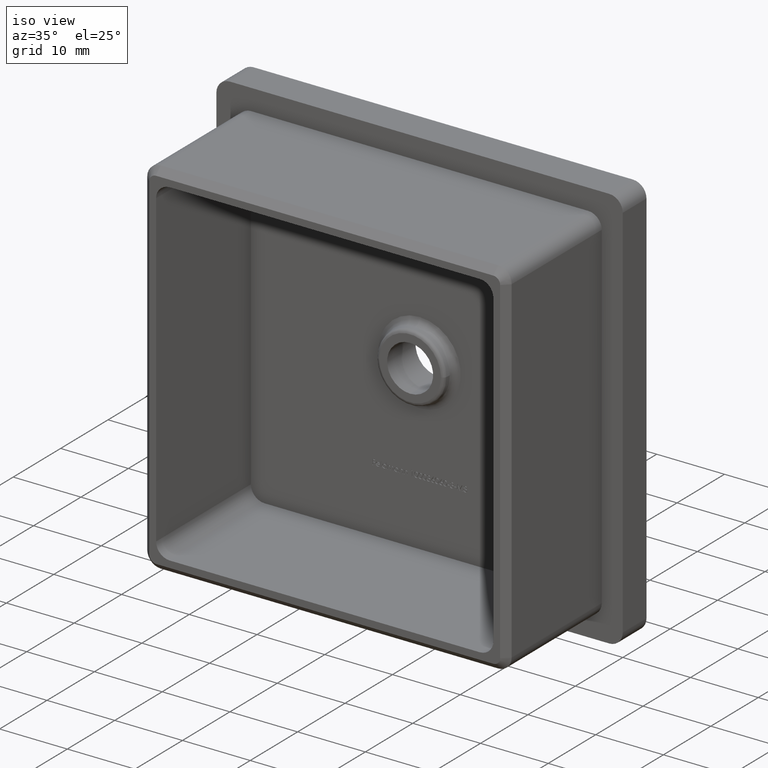
[diagram: clean part render]
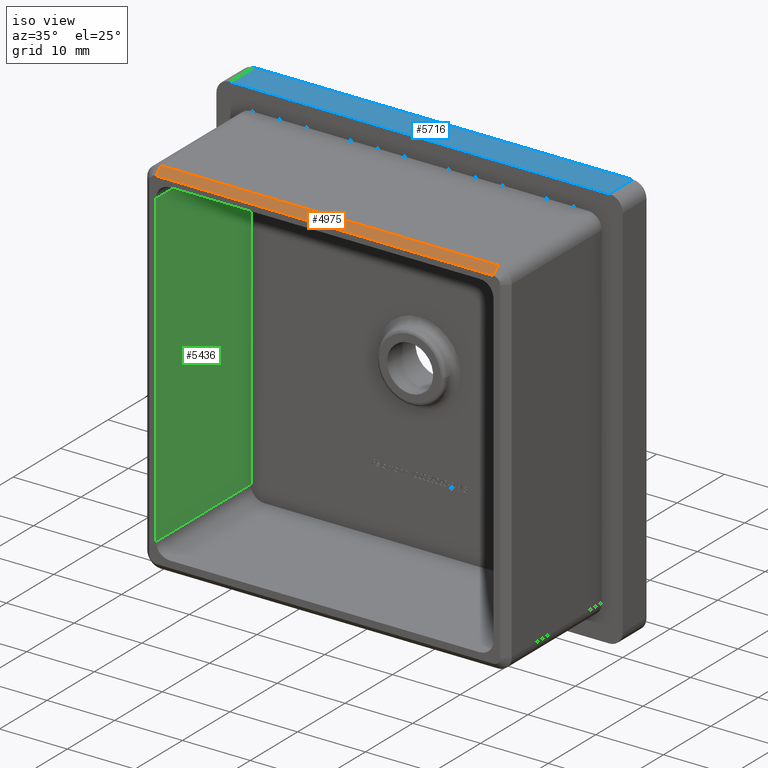
[diagram: same view with three faces highlighted in distinct colors, each labeled with its STEP entity id]
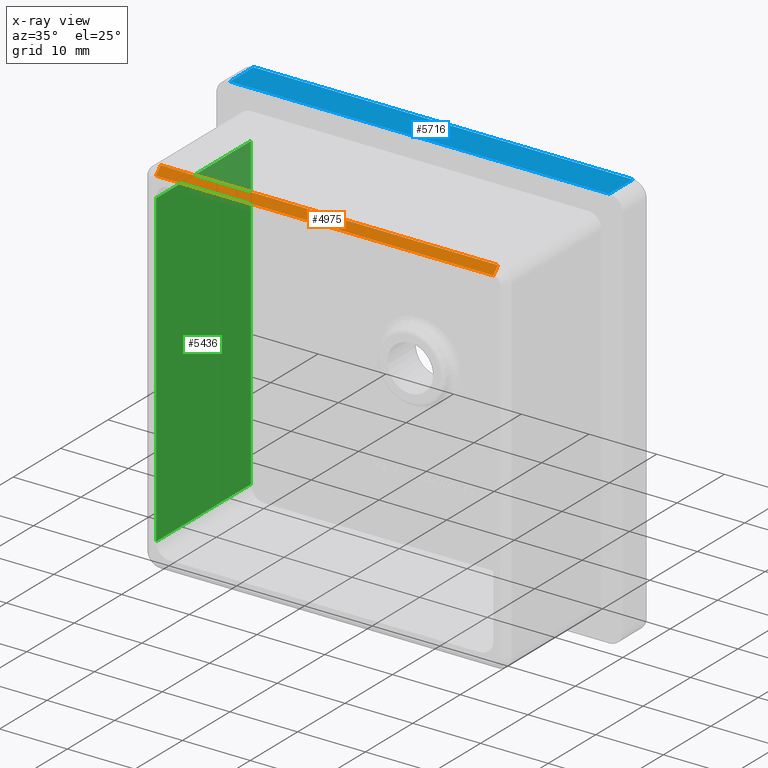
[diagram: x-ray of the same camera — body ghosted, the three highlighted faces saturated]
A machine part, iso view with three faces highlighted in distinct colors.
The next image is the same camera in x-ray (body ghosted, the three faces saturated) — at least one of them is partly hidden behind the body in this view.
Their STEP definitions:

[orange] entity #4975 — the highlighted planar face has unit normal (0, -0.7071, 0.7071).
#216 = VERTEX_POINT ( 'NONE', #6886 ) ;
#405 = CARTESIAN_POINT ( 'NONE',  ( 24.89999999999999900, -20.00000000000000000, 25.89999999999999900 ) ) ;
#742 = DIRECTION ( 'NONE',  ( 0.0000000000000000000, -0.7071067811865475700, 0.7071067811865475700 ) ) ;
#1218 = LINE ( 'NONE', #1500, #2137 ) ;
#1372 = VERTEX_POINT ( 'NONE', #6496 ) ;
#1445 = AXIS2_PLACEMENT_3D ( 'NONE', #16849, #742, #9418 ) ;
#1500 = CARTESIAN_POINT ( 'NONE',  ( 24.89999999999999900, -19.00000000000000000, 26.89999999999999900 ) ) ;
#2137 = VECTOR ( 'NONE', #4362, 1000.000000000000100 ) ;
#3088 = DIRECTION ( 'NONE',  ( -1.000000000000000000, 0.0000000000000000000, 0.0000000000000000000 ) ) ;
#3146 = EDGE_CURVE ( 'NONE', #19200, #216, #10862, .T. ) ;
#4064 = DIRECTION ( 'NONE',  ( 1.000000000000000000, 0.0000000000000000000, 0.0000000000000000000 ) ) ;
#4107 = VECTOR ( 'NONE', #4398, 1000.000000000000100 ) ;
#4362 = DIRECTION ( 'NONE',  ( 0.0000000000000000000, -0.7071067811865474600, -0.7071067811865474600 ) ) ;
#4398 = DIRECTION ( 'NONE',  ( 0.0000000000000000000, -0.7071067811865474600, -0.7071067811865474600 ) ) ;
#4478 = ORIENTED_EDGE ( 'NONE', *, *, #14026, .F. ) ;
#4559 = LINE ( 'NONE', #7492, #4107 ) ;
#4863 = EDGE_CURVE ( 'NONE', #1372, #216, #4559, .T. ) ;
#4975 = ADVANCED_FACE ( 'NONE', ( #14515 ), #15297, .T. ) ;
#6496 = CARTESIAN_POINT ( 'NONE',  ( -24.89999999999999900, -19.00000000000000000, 26.89999999999999900 ) ) ;
#6886 = CARTESIAN_POINT ( 'NONE',  ( -24.89999999999999900, -20.00000000000000000, 25.89999999999999900 ) ) ;
#7297 = ORIENTED_EDGE ( 'NONE', *, *, #16875, .F. ) ;
#7492 = CARTESIAN_POINT ( 'NONE',  ( -24.89999999999999900, -19.00000000000000000, 26.89999999999999900 ) ) ;
#7758 = VERTEX_POINT ( 'NONE', #9914 ) ;
#7917 = ORIENTED_EDGE ( 'NONE', *, *, #3146, .F. ) ;
#8359 = ORIENTED_EDGE ( 'NONE', *, *, #4863, .T. ) ;
#8811 = LINE ( 'NONE', #18746, #16188 ) ;
#9418 = DIRECTION ( 'NONE',  ( 1.000000000000000000, 0.0000000000000000000, 0.0000000000000000000 ) ) ;
#9914 = CARTESIAN_POINT ( 'NONE',  ( 24.89999999999999900, -19.00000000000000000, 26.89999999999999900 ) ) ;
#10862 = LINE ( 'NONE', #17833, #11080 ) ;
#11080 = VECTOR ( 'NONE', #3088, 1000.000000000000000 ) ;
#11483 = EDGE_LOOP ( 'NONE', ( #8359, #7917, #4478, #7297 ) ) ;
#14026 = EDGE_CURVE ( 'NONE', #7758, #19200, #1218, .T. ) ;
#14515 = FACE_OUTER_BOUND ( 'NONE', #11483, .T. ) ;
#15297 = PLANE ( 'NONE',  #1445 ) ;
#16188 = VECTOR ( 'NONE', #4064, 1000.000000000000000 ) ;
#16849 = CARTESIAN_POINT ( 'NONE',  ( 0.0000000000000000000, -20.00000000000000000, 25.89999999999999900 ) ) ;
#16875 = EDGE_CURVE ( 'NONE', #1372, #7758, #8811, .T. ) ;
#17833 = CARTESIAN_POINT ( 'NONE',  ( -24.89999999999999900, -20.00000000000000000, 25.89999999999999900 ) ) ;
#18746 = CARTESIAN_POINT ( 'NONE',  ( 24.89999999999998400, -19.00000000000000000, 26.89999999999999900 ) ) ;
#19200 = VERTEX_POINT ( 'NONE', #405 ) ;

[blue] entity #5716 — the highlighted planar face has unit normal (0, 0, -1).
#671 = EDGE_LOOP ( 'NONE', ( #4694, #5067, #4146, #16641 ) ) ;
#757 = CARTESIAN_POINT ( 'NONE',  ( -27.99999999999999300, 5.000000000000000000, 30.00000000000000000 ) ) ;
#899 = EDGE_CURVE ( 'NONE', #7872, #1998, #8367, .T. ) ;
#1285 = VECTOR ( 'NONE', #17613, 1000.000000000000000 ) ;
#1692 = CARTESIAN_POINT ( 'NONE',  ( -29.99999999999999600, 0.0000000000000000000, 30.00000000000000000 ) ) ;
#1998 = VERTEX_POINT ( 'NONE', #6016 ) ;
#2758 = PLANE ( 'NONE',  #4069 ) ;
#2976 = DIRECTION ( 'NONE',  ( 1.000000000000000000, 0.0000000000000000000, 0.0000000000000000000 ) ) ;
#3096 = CARTESIAN_POINT ( 'NONE',  ( -29.99999999999999600, 5.000000000000000000, 30.00000000000000000 ) ) ;
#4069 = AXIS2_PLACEMENT_3D ( 'NONE', #15994, #16367, #10441 ) ;
#4146 = ORIENTED_EDGE ( 'NONE', *, *, #15843, .F. ) ;
#4596 = CARTESIAN_POINT ( 'NONE',  ( -27.99999999999999300, 0.0000000000000000000, 30.00000000000000000 ) ) ;
#4694 = ORIENTED_EDGE ( 'NONE', *, *, #899, .T. ) ;
#5067 = ORIENTED_EDGE ( 'NONE', *, *, #6519, .T. ) ;
#5216 = VERTEX_POINT ( 'NONE', #5316 ) ;
#5316 = CARTESIAN_POINT ( 'NONE',  ( 28.00000000000000000, 5.000000000000000000, 30.00000000000000000 ) ) ;
#5716 = ADVANCED_FACE ( 'NONE', ( #10097 ), #2758, .F. ) ;
#6016 = CARTESIAN_POINT ( 'NONE',  ( 28.00000000000000000, 0.0000000000000000000, 30.00000000000000000 ) ) ;
#6519 = EDGE_CURVE ( 'NONE', #1998, #5216, #17711, .T. ) ;
#7585 = DIRECTION ( 'NONE',  ( 1.000000000000000000, 0.0000000000000000000, 0.0000000000000000000 ) ) ;
#7872 = VERTEX_POINT ( 'NONE', #4596 ) ;
#7876 = CARTESIAN_POINT ( 'NONE',  ( -27.99999999999999300, 5.000000000000000000, 30.00000000000000000 ) ) ;
#8367 = LINE ( 'NONE', #1692, #14391 ) ;
#8571 = VECTOR ( 'NONE', #18096, 1000.000000000000000 ) ;
#10097 = FACE_OUTER_BOUND ( 'NONE', #671, .T. ) ;
#10441 = DIRECTION ( 'NONE',  ( -1.000000000000000000, 0.0000000000000000000, -0.0000000000000000000 ) ) ;
#11130 = VECTOR ( 'NONE', #2976, 1000.000000000000000 ) ;
#14369 = LINE ( 'NONE', #7876, #8571 ) ;
#14391 = VECTOR ( 'NONE', #7585, 1000.000000000000000 ) ;
#15057 = LINE ( 'NONE', #3096, #11130 ) ;
#15843 = EDGE_CURVE ( 'NONE', #18702, #5216, #15057, .T. ) ;
#15994 = CARTESIAN_POINT ( 'NONE',  ( -29.99999999999999600, 5.000000000000000000, 30.00000000000000000 ) ) ;
#16367 = DIRECTION ( 'NONE',  ( 0.0000000000000000000, 0.0000000000000000000, -1.000000000000000000 ) ) ;
#16641 = ORIENTED_EDGE ( 'NONE', *, *, #17810, .T. ) ;
#17613 = DIRECTION ( 'NONE',  ( -0.0000000000000000000, 1.000000000000000000, -0.0000000000000000000 ) ) ;
#17681 = CARTESIAN_POINT ( 'NONE',  ( 28.00000000000000000, 5.000000000000000000, 30.00000000000000000 ) ) ;
#17711 = LINE ( 'NONE', #17681, #1285 ) ;
#17810 = EDGE_CURVE ( 'NONE', #18702, #7872, #14369, .T. ) ;
#18096 = DIRECTION ( 'NONE',  ( 0.0000000000000000000, -1.000000000000000000, 0.0000000000000000000 ) ) ;
#18702 = VERTEX_POINT ( 'NONE', #757 ) ;

[green] entity #5436 — the highlighted planar face has unit normal (1, 0, 0).
#83 = ORIENTED_EDGE ( 'NONE', *, *, #3492, .T. ) ;
#1272 = CARTESIAN_POINT ( 'NONE',  ( -24.90000000000000200, 0.0000000000000000000, -22.90000000000000600 ) ) ;
#1749 = ORIENTED_EDGE ( 'NONE', *, *, #12189, .T. ) ;
#2118 = CARTESIAN_POINT ( 'NONE',  ( -24.90000000000000200, -20.00000000000000000, 24.90000000000000200 ) ) ;
#2373 = VERTEX_POINT ( 'NONE', #16130 ) ;
#2479 = VECTOR ( 'NONE', #12217, 1000.000000000000000 ) ;
#3394 = CARTESIAN_POINT ( 'NONE',  ( -24.90000000000000200, -20.00000000000000000, -22.90000000000000600 ) ) ;
#3420 = CARTESIAN_POINT ( 'NONE',  ( -24.90000000000000200, 0.0000000000000000000, 24.90000000000000200 ) ) ;
#3492 = EDGE_CURVE ( 'NONE', #9648, #12640, #13879, .T. ) ;
#3951 = VECTOR ( 'NONE', #5013, 1000.000000000000000 ) ;
#4652 = CARTESIAN_POINT ( 'NONE',  ( -24.90000000000000200, 0.0000000000000000000, 22.90000000000000200 ) ) ;
#4746 = EDGE_CURVE ( 'NONE', #9648, #2373, #18449, .T. ) ;
#5013 = DIRECTION ( 'NONE',  ( 0.0000000000000000000, -0.0000000000000000000, -1.000000000000000000 ) ) ;
#5436 = ADVANCED_FACE ( 'NONE', ( #7100 ), #10975, .T. ) ;
#5742 = DIRECTION ( 'NONE',  ( 0.0000000000000000000, 1.000000000000000000, -0.0000000000000000000 ) ) ;
#6228 = CARTESIAN_POINT ( 'NONE',  ( -24.90000000000000200, -20.00000000000000000, 24.90000000000000200 ) ) ;
#7100 = FACE_OUTER_BOUND ( 'NONE', #15840, .T. ) ;
#8066 = CARTESIAN_POINT ( 'NONE',  ( -24.90000000000000200, -20.00000000000000000, 22.90000000000000200 ) ) ;
#8123 = LINE ( 'NONE', #6228, #3951 ) ;
#8681 = ORIENTED_EDGE ( 'NONE', *, *, #17085, .T. ) ;
#9648 = VERTEX_POINT ( 'NONE', #4652 ) ;
#10975 = PLANE ( 'NONE',  #18313 ) ;
#11864 = VERTEX_POINT ( 'NONE', #3394 ) ;
#11978 = LINE ( 'NONE', #1272, #16090 ) ;
#12189 = EDGE_CURVE ( 'NONE', #11864, #2373, #11978, .T. ) ;
#12217 = DIRECTION ( 'NONE',  ( 0.0000000000000000000, -0.0000000000000000000, -1.000000000000000000 ) ) ;
#12532 = ORIENTED_EDGE ( 'NONE', *, *, #4746, .F. ) ;
#12640 = VERTEX_POINT ( 'NONE', #13468 ) ;
#13468 = CARTESIAN_POINT ( 'NONE',  ( -24.90000000000000200, -20.00000000000000000, 22.90000000000000200 ) ) ;
#13879 = LINE ( 'NONE', #8066, #17346 ) ;
#14151 = DIRECTION ( 'NONE',  ( 1.000000000000000000, 0.0000000000000000000, 0.0000000000000000000 ) ) ;
#15426 = DIRECTION ( 'NONE',  ( -0.0000000000000000000, -1.000000000000000000, 0.0000000000000000000 ) ) ;
#15497 = DIRECTION ( 'NONE',  ( 0.0000000000000000000, 0.0000000000000000000, -1.000000000000000000 ) ) ;
#15840 = EDGE_LOOP ( 'NONE', ( #12532, #83, #8681, #1749 ) ) ;
#16090 = VECTOR ( 'NONE', #5742, 1000.000000000000000 ) ;
#16130 = CARTESIAN_POINT ( 'NONE',  ( -24.90000000000000200, 0.0000000000000000000, -22.90000000000000600 ) ) ;
#17085 = EDGE_CURVE ( 'NONE', #12640, #11864, #8123, .T. ) ;
#17346 = VECTOR ( 'NONE', #15426, 1000.000000000000000 ) ;
#18313 = AXIS2_PLACEMENT_3D ( 'NONE', #2118, #14151, #15497 ) ;
#18449 = LINE ( 'NONE', #3420, #2479 ) ;